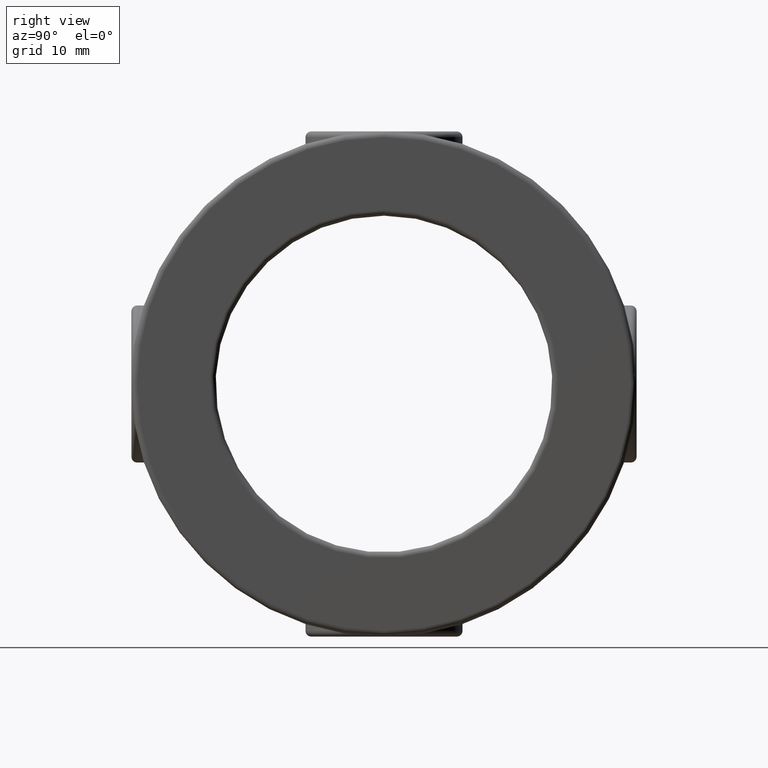
[diagram: clean part render]
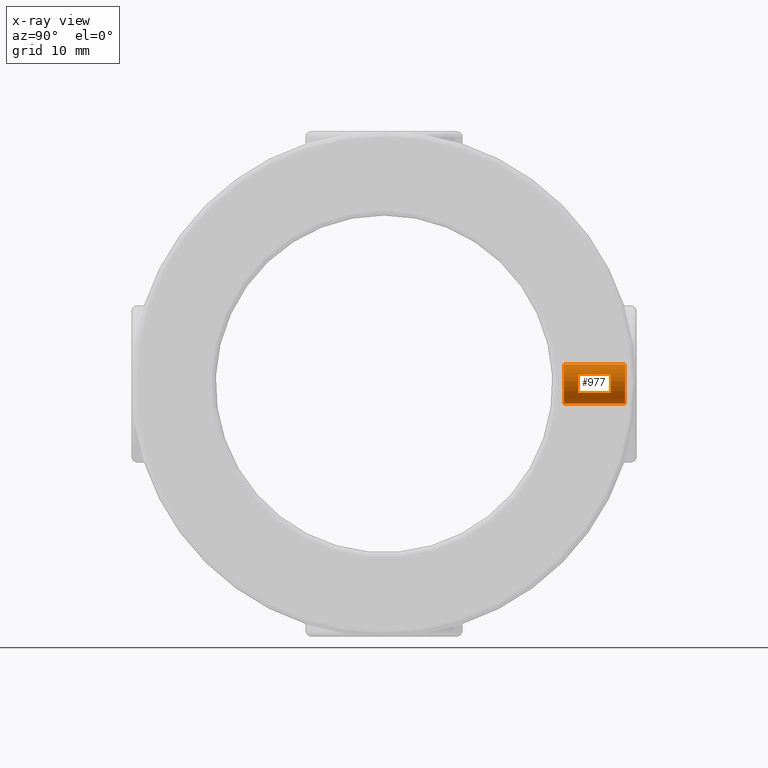
[diagram: x-ray — body ghosted, one internal face saturated and labeled with its STEP entity id]
A machine part, right view, then the same camera in x-ray: the body is ghosted and one INTERNAL B-rep face — a face not visible from any outside direction — is saturated and labeled: STEP entity #977.
In plain terms, the highlighted cylindrical surface (bore or boss wall) has radius 1.7494 mm, axis along (-0, 1, -0).
Its self-contained STEP definition (entity closure, byte-faithful):
#24 = EDGE_LOOP ( 'NONE', ( #2154 ) ) ;
#35 = CARTESIAN_POINT ( 'NONE',  ( 0.0000000000000000000, 0.6305000000000000600, 0.06887500000000003300 ) ) ;
#160 = ORIENTED_EDGE ( 'NONE', *, *, #2308, .F. ) ;
#270 = CIRCLE ( 'NONE', #2011, 0.06887500000000003300 ) ;
#462 = DIRECTION ( 'NONE',  ( -0.0000000000000000000, 1.000000000000000000, -0.0000000000000000000 ) ) ;
#529 = DIRECTION ( 'NONE',  ( -0.0000000000000000000, 1.000000000000000000, -0.0000000000000000000 ) ) ;
#708 = FACE_OUTER_BOUND ( 'NONE', #3001, .T. ) ;
#788 = CYLINDRICAL_SURFACE ( 'NONE', #2403, 0.06887500000000002000 ) ;
#792 = CARTESIAN_POINT ( 'NONE',  ( 0.0000000000000000000, 0.6305000000000000600, 0.0000000000000000000 ) ) ;
#977 = ADVANCED_FACE ( 'NONE', ( #708, #1375 ), #788, .F. ) ;
#1236 = VERTEX_POINT ( 'NONE', #1242 ) ;
#1242 = CARTESIAN_POINT ( 'NONE',  ( 0.0000000000000000000, 0.8459999999999997500, 0.06887500000000000600 ) ) ;
#1293 = DIRECTION ( 'NONE',  ( -0.0000000000000000000, 1.000000000000000000, -0.0000000000000000000 ) ) ;
#1375 = FACE_OUTER_BOUND ( 'NONE', #24, .T. ) ;
#1547 = CIRCLE ( 'NONE', #2653, 0.06887500000000000600 ) ;
#1747 = VERTEX_POINT ( 'NONE', #35 ) ;
#1811 = DIRECTION ( 'NONE',  ( 0.0000000000000000000, 0.0000000000000000000, 1.000000000000000000 ) ) ;
#1994 = CARTESIAN_POINT ( 'NONE',  ( 0.0000000000000000000, 0.8459999999999997500, 0.0000000000000000000 ) ) ;
#2011 = AXIS2_PLACEMENT_3D ( 'NONE', #792, #529, #2526 ) ;
#2154 = ORIENTED_EDGE ( 'NONE', *, *, #3158, .T. ) ;
#2237 = DIRECTION ( 'NONE',  ( 0.0000000000000000000, 0.0000000000000000000, 1.000000000000000000 ) ) ;
#2308 = EDGE_CURVE ( 'NONE', #1747, #1747, #270, .T. ) ;
#2403 = AXIS2_PLACEMENT_3D ( 'NONE', #2571, #1293, #1811 ) ;
#2526 = DIRECTION ( 'NONE',  ( 0.0000000000000000000, 0.0000000000000000000, 1.000000000000000000 ) ) ;
#2571 = CARTESIAN_POINT ( 'NONE',  ( 0.0000000000000000000, 0.8787500000000000300, 0.0000000000000000000 ) ) ;
#2653 = AXIS2_PLACEMENT_3D ( 'NONE', #1994, #462, #2237 ) ;
#3001 = EDGE_LOOP ( 'NONE', ( #160 ) ) ;
#3158 = EDGE_CURVE ( 'NONE', #1236, #1236, #1547, .T. ) ;